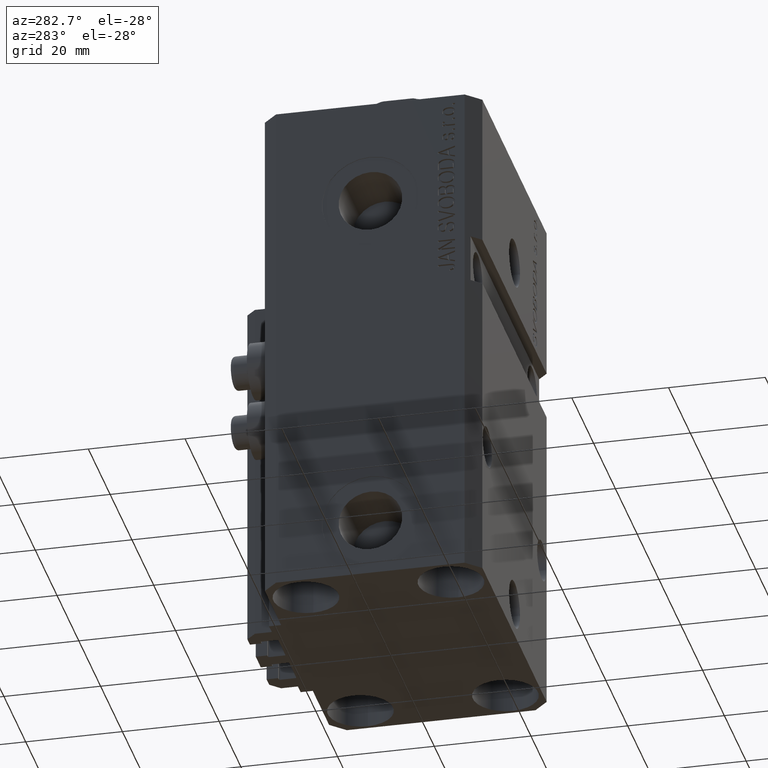
[diagram: clean part render]
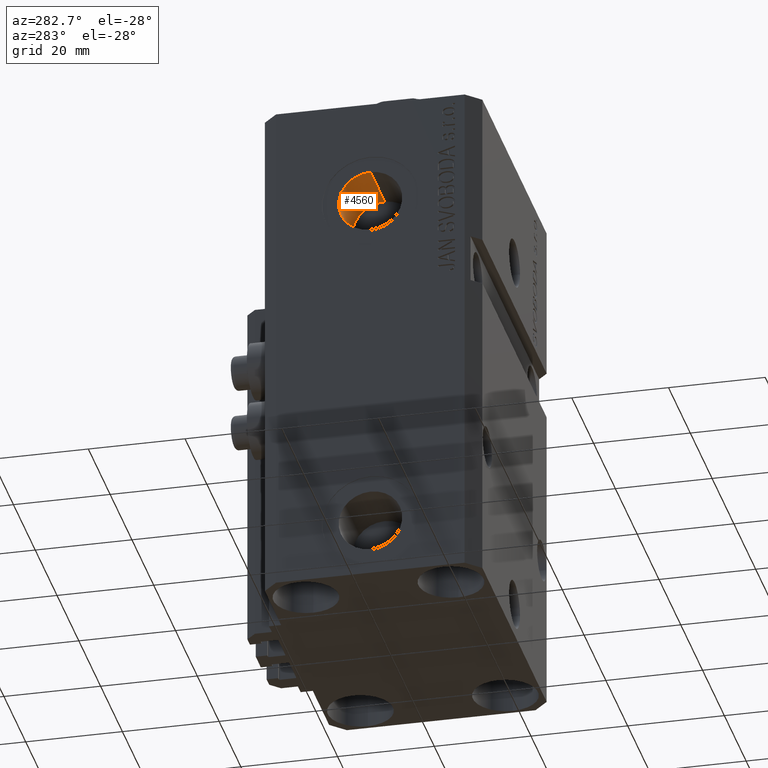
[diagram: same view with one face highlighted and labeled with its STEP entity id]
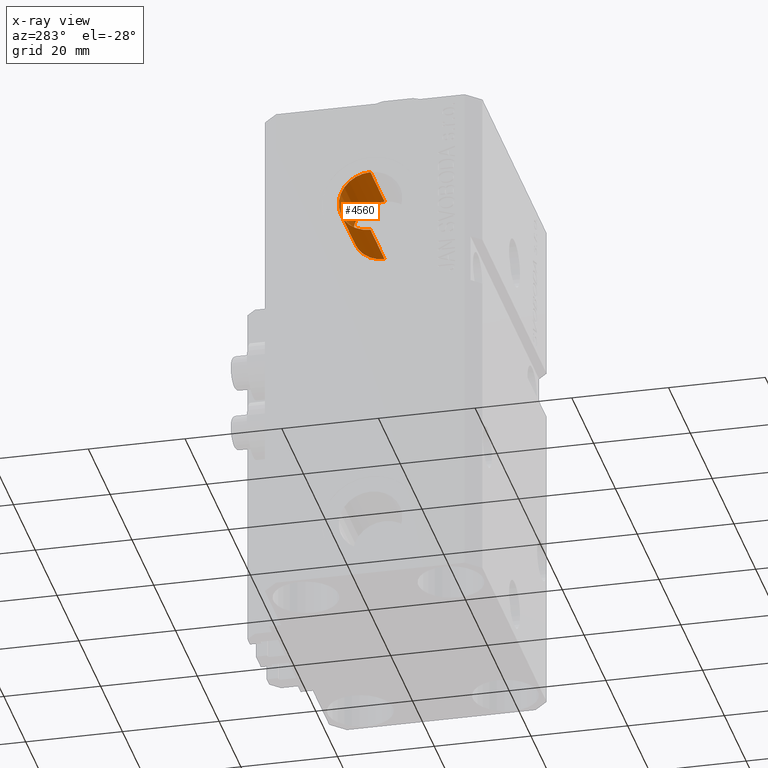
[diagram: x-ray of the same camera — body ghosted, the highlighted face saturated]
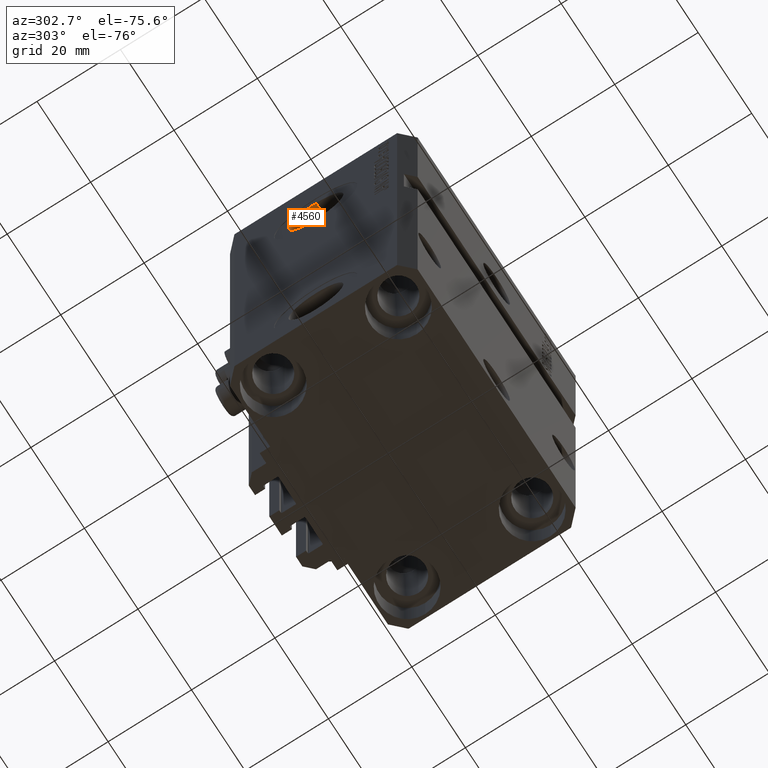
[diagram: same view with one face highlighted and labeled with its STEP entity id]
A machine part, auxiliary view. The second image highlights one B-rep face of the part: STEP entity #4560.
The next image is the same camera in x-ray: the body ghosted, the highlighted face saturated — about 0% of this face is hidden behind the body in this view.
A second angle (auxiliary view) of the same face is appended — the face is thin or edge-on in the first view.
In plain terms, the highlighted cylindrical surface (edge-blend (fillet) strip) has radius 6.58 mm, axis along (-1, -0, -0).
Its self-contained STEP definition (entity closure, byte-faithful):
#1399 = DIRECTION ( 'NONE',  ( -1.000000000000000000, -0.000000000000000000, -0.000000000000000000 ) ) ;
#2203 = EDGE_CURVE ( 'NONE', #16943, #29415, #15877, .T. ) ;
#3833 = EDGE_LOOP ( 'NONE', ( #17466, #47548, #31594, #45349 ) ) ;
#4560 = ADVANCED_FACE ( 'NONE', ( #43256 ), #35305, .F. ) ;
#6127 = DIRECTION ( 'NONE',  ( 0.000000000000000000, 0.000000000000000000, 1.000000000000000000 ) ) ;
#7475 = CARTESIAN_POINT ( 'NONE',  ( -19.39999999999650271, 0.000000000000000000, -22.00000000000000000 ) ) ;
#8471 = VECTOR ( 'NONE', #40361, 1000.000000000000000 ) ;
#8964 = EDGE_CURVE ( 'NONE', #16943, #11713, #18947, .T. ) ;
#9948 = AXIS2_PLACEMENT_3D ( 'NONE', #15501, #43965, #36508 ) ;
#11713 = VERTEX_POINT ( 'NONE', #26824 ) ;
#14432 = VERTEX_POINT ( 'NONE', #25802 ) ;
#15501 = CARTESIAN_POINT ( 'NONE',  ( -32.39999999999650271, 0.000000000000000000, -22.00000000000000000 ) ) ;
#15877 = LINE ( 'NONE', #30605, #21971 ) ;
#16943 = VERTEX_POINT ( 'NONE', #43777 ) ;
#17466 = ORIENTED_EDGE ( 'NONE', *, *, #24972, .F. ) ;
#18947 = CIRCLE ( 'NONE', #36688, 6.579999999999999183 ) ;
#21971 = VECTOR ( 'NONE', #1399, 1000.000000000000000 ) ;
#22915 = DIRECTION ( 'NONE',  ( 0.000000000000000000, 0.000000000000000000, 1.000000000000000000 ) ) ;
#24972 = EDGE_CURVE ( 'NONE', #11713, #14432, #39904, .T. ) ;
#25802 = CARTESIAN_POINT ( 'NONE',  ( -32.39999999999650271, 8.058175938389579572E-16, -28.57999999999999829 ) ) ;
#26824 = CARTESIAN_POINT ( 'NONE',  ( -19.39999999999650271, 8.058175938389579572E-16, -28.57999999999999829 ) ) ;
#28328 = DIRECTION ( 'NONE',  ( -1.000000000000000000, -0.000000000000000000, -0.000000000000000000 ) ) ;
#29012 = AXIS2_PLACEMENT_3D ( 'NONE', #35553, #28328, #6127 ) ;
#29244 = CIRCLE ( 'NONE', #9948, 6.579999999999999183 ) ;
#29415 = VERTEX_POINT ( 'NONE', #44211 ) ;
#30605 = CARTESIAN_POINT ( 'NONE',  ( -19.39999999999650271, 0.000000000000000000, -15.41999999999999993 ) ) ;
#31594 = ORIENTED_EDGE ( 'NONE', *, *, #2203, .T. ) ;
#35305 = CYLINDRICAL_SURFACE ( 'NONE', #29012, 6.579999999999999183 ) ;
#35553 = CARTESIAN_POINT ( 'NONE',  ( -19.39999999999650271, 0.000000000000000000, -22.00000000000000000 ) ) ;
#36301 = CARTESIAN_POINT ( 'NONE',  ( -19.39999999999650271, 8.058175938389580558E-16, -28.57999999999999829 ) ) ;
#36508 = DIRECTION ( 'NONE',  ( 0.000000000000000000, 0.000000000000000000, 1.000000000000000000 ) ) ;
#36688 = AXIS2_PLACEMENT_3D ( 'NONE', #7475, #40749, #22915 ) ;
#39904 = LINE ( 'NONE', #36301, #8471 ) ;
#40361 = DIRECTION ( 'NONE',  ( -1.000000000000000000, -0.000000000000000000, -0.000000000000000000 ) ) ;
#40749 = DIRECTION ( 'NONE',  ( -1.000000000000000000, 0.000000000000000000, 0.000000000000000000 ) ) ;
#43256 = FACE_OUTER_BOUND ( 'NONE', #3833, .T. ) ;
#43713 = EDGE_CURVE ( 'NONE', #29415, #14432, #29244, .T. ) ;
#43777 = CARTESIAN_POINT ( 'NONE',  ( -19.39999999999650271, 0.000000000000000000, -15.41999999999999993 ) ) ;
#43965 = DIRECTION ( 'NONE',  ( -1.000000000000000000, 0.000000000000000000, 0.000000000000000000 ) ) ;
#44211 = CARTESIAN_POINT ( 'NONE',  ( -32.39999999999650271, 0.000000000000000000, -15.41999999999999993 ) ) ;
#45349 = ORIENTED_EDGE ( 'NONE', *, *, #43713, .T. ) ;
#47548 = ORIENTED_EDGE ( 'NONE', *, *, #8964, .F. ) ;